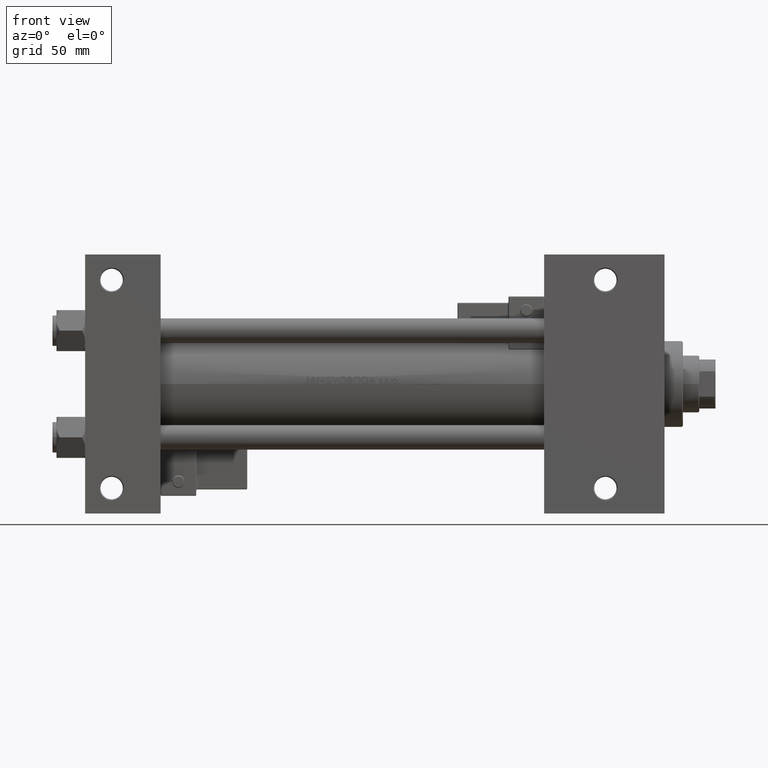
[diagram: clean part render]
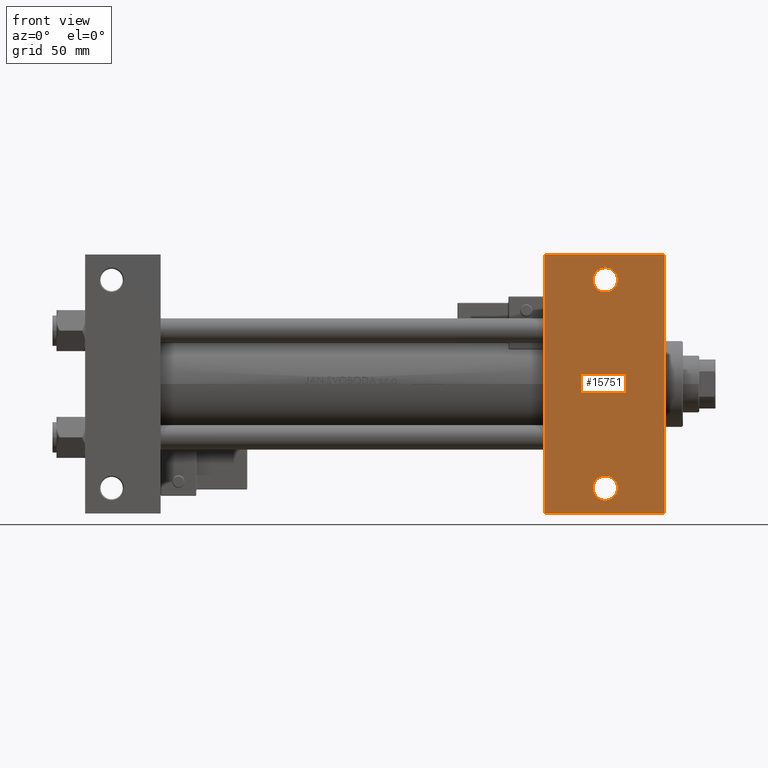
[diagram: same view with one face highlighted and labeled with its STEP entity id]
A machine part, front view. The second image highlights one B-rep face of the part: STEP entity #15751.
In plain terms, the highlighted planar face has unit normal (0, -1, 0).
Its self-contained STEP definition (entity closure, byte-faithful):
#436 = CARTESIAN_POINT ( 'NONE',  ( 255.0000000000000000, -51.00000000000000000, -37.50000000000000000 ) ) ;
#653 = EDGE_LOOP ( 'NONE', ( #46913, #30607, #9446, #47072 ) ) ;
#3478 = VECTOR ( 'NONE', #16392, 1000.000000000000000 ) ;
#4363 = LINE ( 'NONE', #32791, #9064 ) ;
#4817 = EDGE_CURVE ( 'NONE', #35171, #44862, #42459, .T. ) ;
#7755 = VERTEX_POINT ( 'NONE', #38889 ) ;
#9023 = DIRECTION ( 'NONE',  ( -0.000000000000000000, -0.000000000000000000, 1.000000000000000000 ) ) ;
#9064 = VECTOR ( 'NONE', #44759, 1000.000000000000000 ) ;
#9066 = CARTESIAN_POINT ( 'NONE',  ( 225.0000000000000000, -63.50000000000002842, -37.50000000000000000 ) ) ;
#9446 = ORIENTED_EDGE ( 'NONE', *, *, #42776, .T. ) ;
#10060 = DIRECTION ( 'NONE',  ( -1.000000000000000000, 0.000000000000000000, -0.000000000000000000 ) ) ;
#10363 = CIRCLE ( 'NONE', #37830, 5.999499999999990507 ) ;
#10705 = VERTEX_POINT ( 'NONE', #37098 ) ;
#11524 = DIRECTION ( 'NONE',  ( 0.000000000000000000, -1.000000000000000000, 0.000000000000000000 ) ) ;
#12423 = DIRECTION ( 'NONE',  ( -1.000000000000000000, 0.000000000000000000, 0.000000000000000000 ) ) ;
#12450 = EDGE_CURVE ( 'NONE', #7755, #24433, #26934, .T. ) ;
#13746 = DIRECTION ( 'NONE',  ( 0.000000000000000000, -1.000000000000000000, 0.000000000000000000 ) ) ;
#15083 = EDGE_CURVE ( 'NONE', #24433, #7755, #10363, .T. ) ;
#15599 = EDGE_LOOP ( 'NONE', ( #24031, #44852 ) ) ;
#15751 = ADVANCED_FACE ( 'NONE', ( #36391, #25205, #16605 ), #28584, .T. ) ;
#16392 = DIRECTION ( 'NONE',  ( -1.000000000000000000, -0.000000000000000000, -0.000000000000000000 ) ) ;
#16605 = FACE_OUTER_BOUND ( 'NONE', #653, .T. ) ;
#16752 = ORIENTED_EDGE ( 'NONE', *, *, #4817, .T. ) ;
#17503 = AXIS2_PLACEMENT_3D ( 'NONE', #43994, #51564, #48162 ) ;
#17570 = DIRECTION ( 'NONE',  ( -0.000000000000000000, -0.000000000000000000, 1.000000000000000000 ) ) ;
#17898 = DIRECTION ( 'NONE',  ( 0.000000000000000000, 0.000000000000000000, -1.000000000000000000 ) ) ;
#22083 = CARTESIAN_POINT ( 'NONE',  ( 225.0000000000000000, 37.50000000000000000, -37.50000000000000000 ) ) ;
#24031 = ORIENTED_EDGE ( 'NONE', *, *, #15083, .T. ) ;
#24433 = VERTEX_POINT ( 'NONE', #43395 ) ;
#25200 = VECTOR ( 'NONE', #13746, 1000.000000000000000 ) ;
#25205 = FACE_BOUND ( 'NONE', #15599, .T. ) ;
#25363 = ORIENTED_EDGE ( 'NONE', *, *, #41638, .T. ) ;
#25906 = CARTESIAN_POINT ( 'NONE',  ( 255.0000000000000000, 51.00000000000000000, -37.50000000000000000 ) ) ;
#26780 = CARTESIAN_POINT ( 'NONE',  ( 284.0000000000000568, -63.50000000000002842, -37.50000000000000000 ) ) ;
#26870 = CARTESIAN_POINT ( 'NONE',  ( 260.9995000000000118, 51.00000000000000000, -37.50000000000000000 ) ) ;
#26934 = CIRCLE ( 'NONE', #33602, 5.999499999999990507 ) ;
#28584 = PLANE ( 'NONE',  #37046 ) ;
#28652 = CARTESIAN_POINT ( 'NONE',  ( 255.0000000000000000, -51.00000000000000000, -37.50000000000000000 ) ) ;
#28913 = DIRECTION ( 'NONE',  ( -0.000000000000000000, -0.000000000000000000, 1.000000000000000000 ) ) ;
#30607 = ORIENTED_EDGE ( 'NONE', *, *, #36872, .T. ) ;
#31355 = LINE ( 'NONE', #47248, #50049 ) ;
#31700 = AXIS2_PLACEMENT_3D ( 'NONE', #25906, #17570, #37615 ) ;
#32070 = EDGE_CURVE ( 'NONE', #34206, #10705, #33067, .T. ) ;
#32791 = CARTESIAN_POINT ( 'NONE',  ( 225.0000000000000284, 63.50000000000000000, -37.50000000000000000 ) ) ;
#33067 = LINE ( 'NONE', #9066, #3478 ) ;
#33602 = AXIS2_PLACEMENT_3D ( 'NONE', #436, #9023, #12423 ) ;
#34065 = LINE ( 'NONE', #22083, #25200 ) ;
#34080 = VERTEX_POINT ( 'NONE', #36963 ) ;
#34206 = VERTEX_POINT ( 'NONE', #26780 ) ;
#35171 = VERTEX_POINT ( 'NONE', #50508 ) ;
#36391 = FACE_BOUND ( 'NONE', #41771, .T. ) ;
#36655 = CARTESIAN_POINT ( 'NONE',  ( 284.0000000000000568, 37.50000000000000000, -37.50000000000000000 ) ) ;
#36872 = EDGE_CURVE ( 'NONE', #34080, #40050, #4363, .T. ) ;
#36963 = CARTESIAN_POINT ( 'NONE',  ( 225.0000000000000284, 63.50000000000000000, -37.50000000000000000 ) ) ;
#37046 = AXIS2_PLACEMENT_3D ( 'NONE', #36655, #17898, #10060 ) ;
#37098 = CARTESIAN_POINT ( 'NONE',  ( 225.0000000000000000, -63.50000000000002842, -37.50000000000000000 ) ) ;
#37615 = DIRECTION ( 'NONE',  ( -1.000000000000000000, 0.000000000000000000, 0.000000000000000000 ) ) ;
#37830 = AXIS2_PLACEMENT_3D ( 'NONE', #28652, #28913, #40629 ) ;
#38889 = CARTESIAN_POINT ( 'NONE',  ( 260.9995000000000118, -51.00000000000000000, -37.50000000000000000 ) ) ;
#40050 = VERTEX_POINT ( 'NONE', #40359 ) ;
#40359 = CARTESIAN_POINT ( 'NONE',  ( 284.0000000000000568, 63.49999999999997158, -37.50000000000000000 ) ) ;
#40629 = DIRECTION ( 'NONE',  ( -1.000000000000000000, 0.000000000000000000, 0.000000000000000000 ) ) ;
#40845 = CIRCLE ( 'NONE', #31700, 5.999499999999990507 ) ;
#41638 = EDGE_CURVE ( 'NONE', #44862, #35171, #40845, .T. ) ;
#41771 = EDGE_LOOP ( 'NONE', ( #16752, #25363 ) ) ;
#42459 = CIRCLE ( 'NONE', #17503, 5.999499999999990507 ) ;
#42776 = EDGE_CURVE ( 'NONE', #40050, #34206, #31355, .T. ) ;
#43395 = CARTESIAN_POINT ( 'NONE',  ( 249.0005000000000166, -51.00000000000000000, -37.50000000000000000 ) ) ;
#43994 = CARTESIAN_POINT ( 'NONE',  ( 255.0000000000000000, 51.00000000000000000, -37.50000000000000000 ) ) ;
#44759 = DIRECTION ( 'NONE',  ( 1.000000000000000000, -4.704334850106595794E-16, 0.000000000000000000 ) ) ;
#44852 = ORIENTED_EDGE ( 'NONE', *, *, #12450, .T. ) ;
#44862 = VERTEX_POINT ( 'NONE', #26870 ) ;
#46913 = ORIENTED_EDGE ( 'NONE', *, *, #48939, .F. ) ;
#47072 = ORIENTED_EDGE ( 'NONE', *, *, #32070, .T. ) ;
#47248 = CARTESIAN_POINT ( 'NONE',  ( 284.0000000000000568, 37.50000000000000000, -37.50000000000000000 ) ) ;
#48162 = DIRECTION ( 'NONE',  ( -1.000000000000000000, 0.000000000000000000, 0.000000000000000000 ) ) ;
#48939 = EDGE_CURVE ( 'NONE', #34080, #10705, #34065, .T. ) ;
#50049 = VECTOR ( 'NONE', #11524, 1000.000000000000000 ) ;
#50508 = CARTESIAN_POINT ( 'NONE',  ( 249.0005000000000166, 51.00000000000000000, -37.50000000000000000 ) ) ;
#51564 = DIRECTION ( 'NONE',  ( -0.000000000000000000, -0.000000000000000000, 1.000000000000000000 ) ) ;